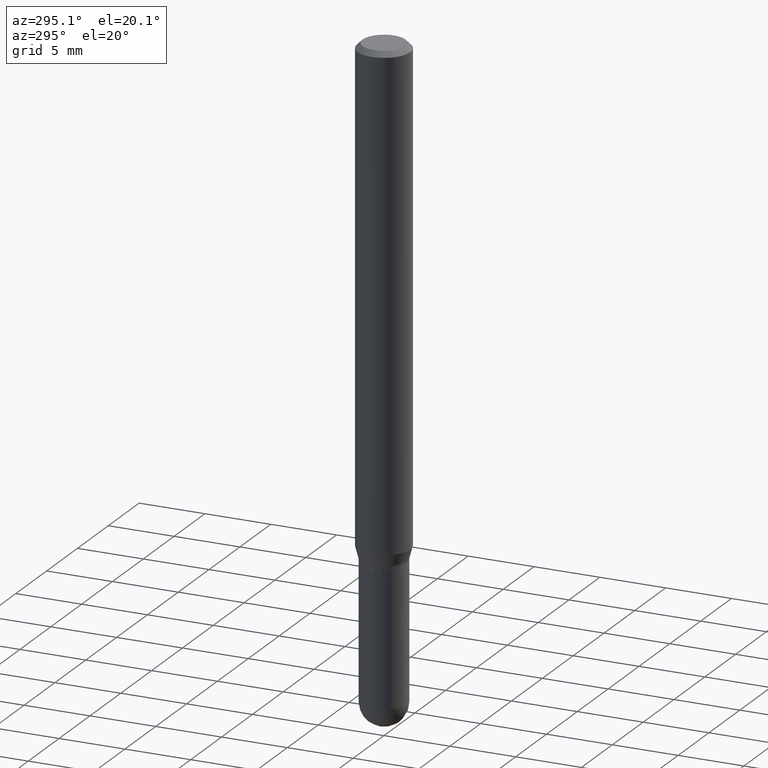
[diagram: clean part render]
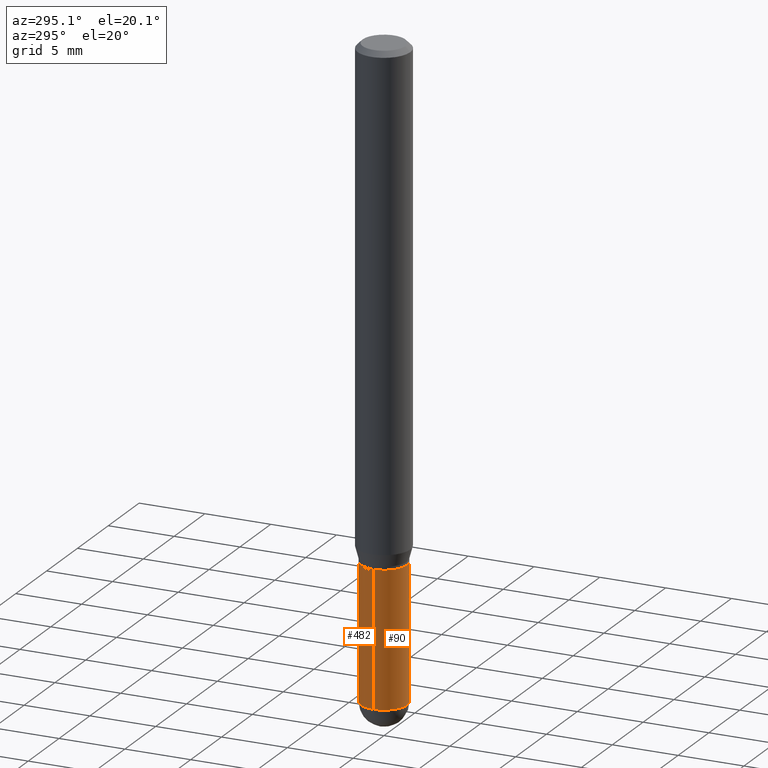
[diagram: same view with one multi-face feature highlighted, each face labeled with its STEP entity id]
A machine part, auxiliary view. The highlighted faces form ONE feature: a constant-radius fillet chain: 2 tangent blend faces with common blend radius 1.7501 mm. The faces share edges in the B-rep.
Their STEP definitions:
[1] entity #482 (Cylinder):
#48 = ORIENTED_EDGE ( 'NONE', *, *, #217, .F. ) ;
#70 = AXIS2_PLACEMENT_3D ( 'NONE', #361, #203, #124 ) ;
#83 = ORIENTED_EDGE ( 'NONE', *, *, #508, .T. ) ;
#88 = CIRCLE ( 'NONE', #206, 0.06890000000000007230 ) ;
#92 = VERTEX_POINT ( 'NONE', #295 ) ;
#100 = DIRECTION ( 'NONE',  ( -2.445468806185136877E-29, 3.491481338843145188E-15, 1.000000000000000000 ) ) ;
#104 = CARTESIAN_POINT ( 'NONE',  ( 0.06890000000000007230, -4.811261284925842315E-16, 3.359685798523402771E-30 ) ) ;
#107 = DIRECTION ( 'NONE',  ( -2.445468806185136597E-29, 3.491481338843145583E-15, 1.000000000000000000 ) ) ;
#124 = DIRECTION ( 'NONE',  ( 1.000000000000000000, -6.982962677686273021E-15, 0.000000000000000000 ) ) ;
#126 = VERTEX_POINT ( 'NONE', #260 ) ;
#131 = ORIENTED_EDGE ( 'NONE', *, *, #186, .T. ) ;
#132 = CARTESIAN_POINT ( 'NONE',  ( -0.06890000000000007230, -5.438447646216124813E-15, -1.496099999999999985 ) ) ;
#143 = EDGE_LOOP ( 'NONE', ( #131, #83, #48, #296, #238 ) ) ;
#168 = CARTESIAN_POINT ( 'NONE',  ( 4.645412544229285965E-29, -6.632417951266439838E-15, -1.899600000000000177 ) ) ;
#171 = DIRECTION ( 'NONE',  ( -2.445468806185136597E-29, 3.491481338843145583E-15, 1.000000000000000000 ) ) ;
#172 = DIRECTION ( 'NONE',  ( 1.000000000000000000, -6.982962677686273021E-15, 0.000000000000000000 ) ) ;
#173 = VERTEX_POINT ( 'NONE', #132 ) ;
#186 = EDGE_CURVE ( 'NONE', #126, #92, #320, .T. ) ;
#203 = DIRECTION ( 'NONE',  ( -2.445468806185136597E-29, 3.491481338843145583E-15, 1.000000000000000000 ) ) ;
#206 = AXIS2_PLACEMENT_3D ( 'NONE', #367, #171, #172 ) ;
#217 = EDGE_CURVE ( 'NONE', #494, #173, #88, .T. ) ;
#238 = ORIENTED_EDGE ( 'NONE', *, *, #403, .T. ) ;
#260 = CARTESIAN_POINT ( 'NONE',  ( 4.811261284926304785E-16, 0.06889999999999341096, -1.899600000000000399 ) ) ;
#272 = CARTESIAN_POINT ( 'NONE',  ( 0.000000000000000000, 0.000000000000000000, 0.000000000000000000 ) ) ;
#288 = DIRECTION ( 'NONE',  ( 1.000000000000000000, -6.982962677686273021E-15, 0.000000000000000000 ) ) ;
#293 = VECTOR ( 'NONE', #387, 39.37007874015748143 ) ;
#295 = CARTESIAN_POINT ( 'NONE',  ( -0.06890000000000008618, -5.438447646216124813E-15, -1.899600000000000177 ) ) ;
#296 = ORIENTED_EDGE ( 'NONE', *, *, #303, .F. ) ;
#301 = LINE ( 'NONE', #460, #480 ) ;
#302 = VERTEX_POINT ( 'NONE', #427 ) ;
#303 = EDGE_CURVE ( 'NONE', #302, #494, #413, .T. ) ;
#313 = FACE_OUTER_BOUND ( 'NONE', #143, .T. ) ;
#320 = CIRCLE ( 'NONE', #326, 0.06890000000000007230 ) ;
#326 = AXIS2_PLACEMENT_3D ( 'NONE', #168, #409, #288 ) ;
#341 = DIRECTION ( 'NONE',  ( 1.000000000000000000, -6.982962677686265922E-15, 4.876176775795935232E-29 ) ) ;
#361 = CARTESIAN_POINT ( 'NONE',  ( 4.645412544229285965E-29, -6.632417951266439838E-15, -1.899600000000000177 ) ) ;
#367 = CARTESIAN_POINT ( 'NONE',  ( 3.658665880933582389E-29, -5.223605231043229660E-15, -1.496099999999999985 ) ) ;
#387 = DIRECTION ( 'NONE',  ( -2.445468806185136877E-29, 3.491481338843145188E-15, 1.000000000000000000 ) ) ;
#403 = EDGE_CURVE ( 'NONE', #302, #126, #488, .T. ) ;
#409 = DIRECTION ( 'NONE',  ( -2.445468806185136597E-29, 3.491481338843145583E-15, 1.000000000000000000 ) ) ;
#413 = LINE ( 'NONE', #104, #293 ) ;
#427 = CARTESIAN_POINT ( 'NONE',  ( 0.06890000000000008618, -6.409137719647418882E-15, -1.899600000000000177 ) ) ;
#434 = AXIS2_PLACEMENT_3D ( 'NONE', #272, #107, #341 ) ;
#460 = CARTESIAN_POINT ( 'NONE',  ( -0.06890000000000007230, 4.895639449387095418E-16, -3.389146277185633520E-30 ) ) ;
#463 = CARTESIAN_POINT ( 'NONE',  ( 0.06890000000000007230, -5.704731359535814187E-15, -1.496099999999999985 ) ) ;
#480 = VECTOR ( 'NONE', #100, 39.37007874015748143 ) ;
#482 = ADVANCED_FACE ( 'NONE', ( #313 ), #496, .T. ) ;
#488 = CIRCLE ( 'NONE', #70, 0.06890000000000007230 ) ;
#494 = VERTEX_POINT ( 'NONE', #463 ) ;
#496 = CYLINDRICAL_SURFACE ( 'NONE', #434, 0.06890000000000007230 ) ;
#508 = EDGE_CURVE ( 'NONE', #92, #173, #301, .T. ) ;
[2] entity #90 (Cylinder):
#8 = CIRCLE ( 'NONE', #425, 0.06890000000000007230 ) ;
#11 = DIRECTION ( 'NONE',  ( 1.000000000000000000, -6.982962677686273021E-15, 0.000000000000000000 ) ) ;
#20 = ORIENTED_EDGE ( 'NONE', *, *, #273, .T. ) ;
#24 = DIRECTION ( 'NONE',  ( -2.445468806185136597E-29, 3.491481338843145583E-15, 1.000000000000000000 ) ) ;
#26 = AXIS2_PLACEMENT_3D ( 'NONE', #312, #24, #275 ) ;
#67 = VERTEX_POINT ( 'NONE', #142 ) ;
#71 = EDGE_CURVE ( 'NONE', #92, #67, #8, .T. ) ;
#85 = CYLINDRICAL_SURFACE ( 'NONE', #353, 0.06890000000000007230 ) ;
#89 = CIRCLE ( 'NONE', #26, 0.06890000000000007230 ) ;
#90 = ADVANCED_FACE ( 'NONE', ( #144 ), #85, .T. ) ;
#92 = VERTEX_POINT ( 'NONE', #295 ) ;
#100 = DIRECTION ( 'NONE',  ( -2.445468806185136877E-29, 3.491481338843145188E-15, 1.000000000000000000 ) ) ;
#104 = CARTESIAN_POINT ( 'NONE',  ( 0.06890000000000007230, -4.811261284925842315E-16, 3.359685798523402771E-30 ) ) ;
#132 = CARTESIAN_POINT ( 'NONE',  ( -0.06890000000000007230, -5.438447646216124813E-15, -1.496099999999999985 ) ) ;
#133 = ORIENTED_EDGE ( 'NONE', *, *, #508, .F. ) ;
#141 = EDGE_CURVE ( 'NONE', #173, #494, #363, .T. ) ;
#142 = CARTESIAN_POINT ( 'NONE',  ( -4.895639449386624073E-16, -0.06890000000000662261, -1.899599999999999955 ) ) ;
#144 = FACE_OUTER_BOUND ( 'NONE', #455, .T. ) ;
#147 = AXIS2_PLACEMENT_3D ( 'NONE', #329, #179, #410 ) ;
#158 = ORIENTED_EDGE ( 'NONE', *, *, #141, .F. ) ;
#173 = VERTEX_POINT ( 'NONE', #132 ) ;
#179 = DIRECTION ( 'NONE',  ( -2.445468806185136597E-29, 3.491481338843145583E-15, 1.000000000000000000 ) ) ;
#273 = EDGE_CURVE ( 'NONE', #67, #302, #89, .T. ) ;
#275 = DIRECTION ( 'NONE',  ( 1.000000000000000000, -6.982962677686273021E-15, 0.000000000000000000 ) ) ;
#284 = ORIENTED_EDGE ( 'NONE', *, *, #303, .T. ) ;
#293 = VECTOR ( 'NONE', #387, 39.37007874015748143 ) ;
#295 = CARTESIAN_POINT ( 'NONE',  ( -0.06890000000000008618, -5.438447646216124813E-15, -1.899600000000000177 ) ) ;
#301 = LINE ( 'NONE', #460, #480 ) ;
#302 = VERTEX_POINT ( 'NONE', #427 ) ;
#303 = EDGE_CURVE ( 'NONE', #302, #494, #413, .T. ) ;
#310 = ORIENTED_EDGE ( 'NONE', *, *, #71, .T. ) ;
#312 = CARTESIAN_POINT ( 'NONE',  ( 4.645412544229285965E-29, -6.632417951266439838E-15, -1.899600000000000177 ) ) ;
#329 = CARTESIAN_POINT ( 'NONE',  ( 3.658665880933582389E-29, -5.223605231043229660E-15, -1.496099999999999985 ) ) ;
#353 = AXIS2_PLACEMENT_3D ( 'NONE', #449, #364, #402 ) ;
#363 = CIRCLE ( 'NONE', #147, 0.06890000000000007230 ) ;
#364 = DIRECTION ( 'NONE',  ( -2.445468806185136597E-29, 3.491481338843145583E-15, 1.000000000000000000 ) ) ;
#371 = DIRECTION ( 'NONE',  ( -2.445468806185136597E-29, 3.491481338843145583E-15, 1.000000000000000000 ) ) ;
#387 = DIRECTION ( 'NONE',  ( -2.445468806185136877E-29, 3.491481338843145188E-15, 1.000000000000000000 ) ) ;
#402 = DIRECTION ( 'NONE',  ( 1.000000000000000000, -6.982962677686265922E-15, 4.876176775795935232E-29 ) ) ;
#410 = DIRECTION ( 'NONE',  ( 1.000000000000000000, -6.982962677686273021E-15, 0.000000000000000000 ) ) ;
#413 = LINE ( 'NONE', #104, #293 ) ;
#425 = AXIS2_PLACEMENT_3D ( 'NONE', #485, #371, #11 ) ;
#427 = CARTESIAN_POINT ( 'NONE',  ( 0.06890000000000008618, -6.409137719647418882E-15, -1.899600000000000177 ) ) ;
#449 = CARTESIAN_POINT ( 'NONE',  ( 0.000000000000000000, 0.000000000000000000, 0.000000000000000000 ) ) ;
#455 = EDGE_LOOP ( 'NONE', ( #133, #310, #20, #284, #158 ) ) ;
#460 = CARTESIAN_POINT ( 'NONE',  ( -0.06890000000000007230, 4.895639449387095418E-16, -3.389146277185633520E-30 ) ) ;
#463 = CARTESIAN_POINT ( 'NONE',  ( 0.06890000000000007230, -5.704731359535814187E-15, -1.496099999999999985 ) ) ;
#480 = VECTOR ( 'NONE', #100, 39.37007874015748143 ) ;
#485 = CARTESIAN_POINT ( 'NONE',  ( 4.645412544229285965E-29, -6.632417951266439838E-15, -1.899600000000000177 ) ) ;
#494 = VERTEX_POINT ( 'NONE', #463 ) ;
#508 = EDGE_CURVE ( 'NONE', #92, #173, #301, .T. ) ;